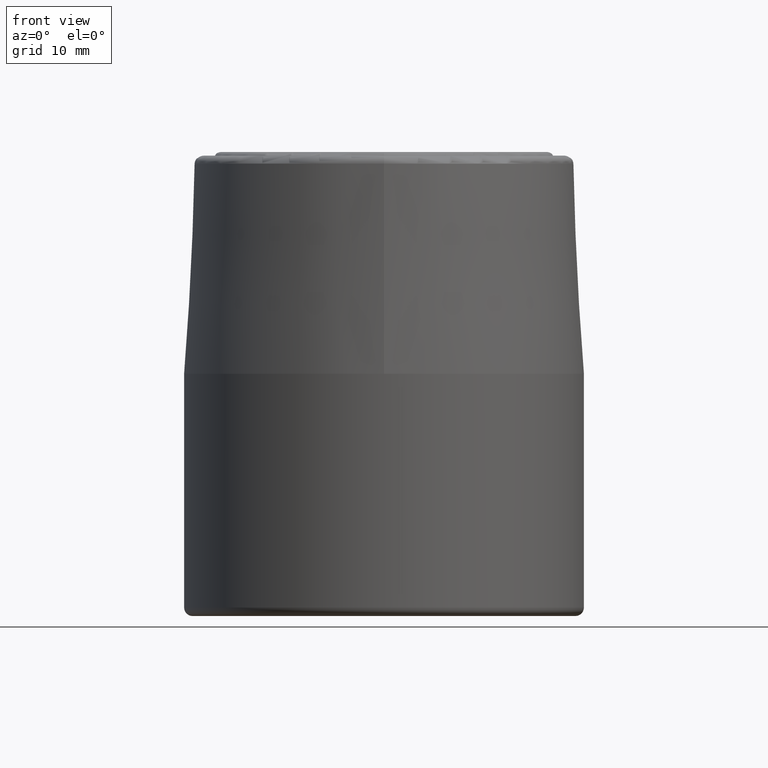
[diagram: clean part render]
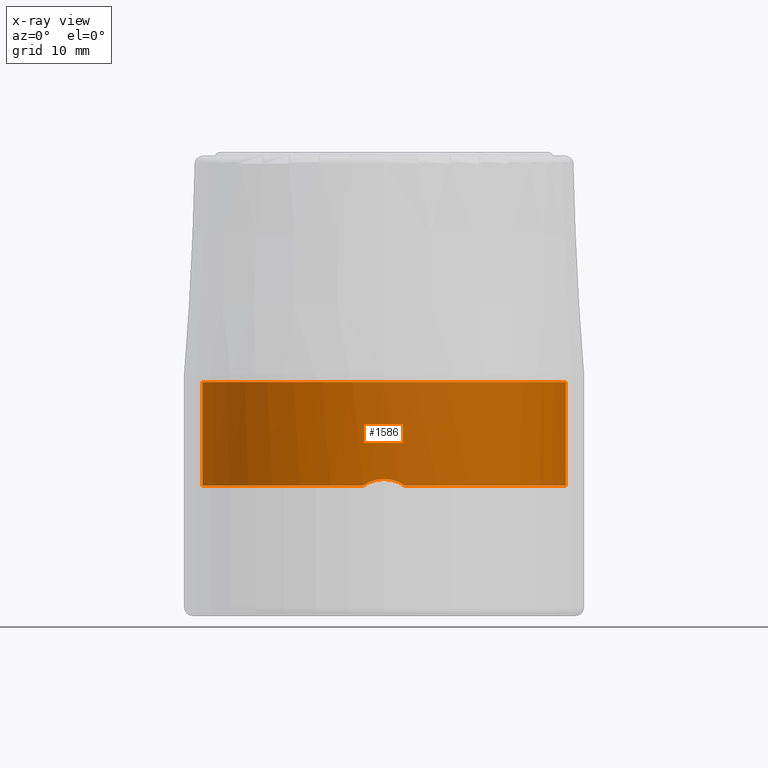
[diagram: x-ray — body ghosted, one internal face saturated and labeled with its STEP entity id]
A machine part, front view, then the same camera in x-ray: the body is ghosted and one INTERNAL B-rep face — a face not visible from any outside direction — is saturated and labeled: STEP entity #1586.
In plain terms, the highlighted cylindrical surface (partial cylindrical patch) has radius 15 mm, axis along (0, 0, 1).
Its self-contained STEP definition (entity closure, byte-faithful):
#352=CARTESIAN_POINT('',(0.E0,0.E0,1.9E1));
#353=DIRECTION('',(0.E0,0.E0,1.E0));
#354=DIRECTION('',(0.E0,-1.E0,0.E0));
#355=AXIS2_PLACEMENT_3D('',#352,#353,#354);
#357=CARTESIAN_POINT('',(0.E0,0.E0,1.044948974278E1));
#358=DIRECTION('',(0.E0,0.E0,1.E0));
#359=DIRECTION('',(1.154700538379E-1,-9.933109617168E-1,0.E0));
#360=AXIS2_PLACEMENT_3D('',#357,#358,#359);
#362=CARTESIAN_POINT('',(0.E0,-1.5E1,1.1E1));
#363=CARTESIAN_POINT('',(1.474734729157E-1,-1.5E1,1.1E1));
#364=CARTESIAN_POINT('',(4.437367453512E-1,-1.499577025289E1,1.097898437295E1));
#365=CARTESIAN_POINT('',(9.077032800050E-1,-1.497483367461E1,1.087262541160E1));
#366=CARTESIAN_POINT('',(1.342774855779E0,-1.494170594969E1,1.069596162603E1));
#367=CARTESIAN_POINT('',(1.606197012465E0,-1.491429463226E1,1.053848181474E1));
#368=CARTESIAN_POINT('',(1.732050807569E0,-1.489966442575E1,1.044948974278E1));
#370=CARTESIAN_POINT('',(-1.732050807569E0,-1.489966442575E1,1.044948974278E1));
#371=CARTESIAN_POINT('',(-1.606229563562E0,-1.491429084827E1,1.053845879764E1));
#372=CARTESIAN_POINT('',(-1.342693953971E0,-1.494169973905E1,1.069592078347E1));
#373=CARTESIAN_POINT('',(-9.089263521619E-1,-1.497477265902E1,
1.087231101679E1));
#374=CARTESIAN_POINT('',(-4.418604788171E-1,-1.499584348464E1,
1.097935621031E1));
#375=CARTESIAN_POINT('',(-1.466635958769E-1,-1.5E1,1.1E1));
#376=CARTESIAN_POINT('',(0.E0,-1.5E1,1.1E1));
#378=CARTESIAN_POINT('',(0.E0,0.E0,1.044948974278E1));
#379=DIRECTION('',(0.E0,0.E0,1.E0));
#380=DIRECTION('',(-1.E0,0.E0,0.E0));
#381=AXIS2_PLACEMENT_3D('',#378,#379,#380);
#383=DIRECTION('',(0.E0,0.E0,1.E0));
#384=VECTOR('',#383,8.550510257217E0);
#385=CARTESIAN_POINT('',(-1.5E1,0.E0,1.044948974278E1));
#386=LINE('',#385,#384);
#387=CARTESIAN_POINT('',(0.E0,0.E0,1.9E1));
#388=DIRECTION('',(0.E0,0.E0,1.E0));
#389=DIRECTION('',(-1.E0,0.E0,0.E0));
#390=AXIS2_PLACEMENT_3D('',#387,#388,#389);
#466=DIRECTION('',(0.E0,-1.461900420291E-10,1.E0));
#467=VECTOR('',#466,8.550510257217E0);
#468=CARTESIAN_POINT('',(1.5E1,0.E0,1.044948974278E1));
#469=LINE('',#468,#467);
#1097=VERTEX_POINT('',#370);
#1098=VERTEX_POINT('',#376);
#1099=VERTEX_POINT('',#368);
#1112=CARTESIAN_POINT('',(-1.5E1,0.E0,1.044948974278E1));
#1113=VERTEX_POINT('',#1112);
#1116=CARTESIAN_POINT('',(1.5E1,0.E0,1.044948974278E1));
#1117=VERTEX_POINT('',#1116);
#1190=CARTESIAN_POINT('',(-1.5E1,0.E0,1.9E1));
#1192=VERTEX_POINT('',#1190);
#1193=CARTESIAN_POINT('',(0.E0,-1.5E1,1.9E1));
#1194=VERTEX_POINT('',#1193);
#1195=CARTESIAN_POINT('',(1.5E1,0.E0,1.9E1));
#1196=VERTEX_POINT('',#1195);
#1565=CARTESIAN_POINT('',(0.E0,0.E0,0.E0));
#1566=DIRECTION('',(0.E0,0.E0,1.E0));
#1567=DIRECTION('',(1.E0,0.E0,0.E0));
#1568=AXIS2_PLACEMENT_3D('',#1565,#1566,#1567);
#1569=CYLINDRICAL_SURFACE('',#1568,1.5E1);
#1570=ORIENTED_EDGE('',*,*,#1521,.T.);
#1572=ORIENTED_EDGE('',*,*,#1571,.F.);
#1574=ORIENTED_EDGE('',*,*,#1573,.F.);
#1576=ORIENTED_EDGE('',*,*,#1575,.F.);
#1578=ORIENTED_EDGE('',*,*,#1577,.F.);
#1580=ORIENTED_EDGE('',*,*,#1579,.F.);
#1582=ORIENTED_EDGE('',*,*,#1581,.T.);
#1583=ORIENTED_EDGE('',*,*,#1535,.T.);
#1584=EDGE_LOOP('',(#1570,#1572,#1574,#1576,#1578,#1580,#1582,#1583));
#1585=FACE_OUTER_BOUND('',#1584,.F.);
#1586=ADVANCED_FACE('',(#1585),#1569,.T.);
#356=CIRCLE('',#355,1.5E1);
#361=CIRCLE('',#360,1.5E1);
#369=B_SPLINE_CURVE_WITH_KNOTS('',3,(#362,#363,#364,#365,#366,#367,#368),
.UNSPECIFIED.,.F.,.F.,(4,1,1,1,4),(0.E0,2.5E-1,5.E-1,7.5E-1,1.E0),
.UNSPECIFIED.);
#377=B_SPLINE_CURVE_WITH_KNOTS('',3,(#370,#371,#372,#373,#374,#375,#376),
.UNSPECIFIED.,.F.,.F.,(4,1,1,1,4),(0.E0,2.5E-1,5.E-1,7.5E-1,1.E0),
.UNSPECIFIED.);
#382=CIRCLE('',#381,1.5E1);
#391=CIRCLE('',#390,1.5E1);
#1521=EDGE_CURVE('',#1194,#1196,#356,.T.);
#1535=EDGE_CURVE('',#1192,#1194,#391,.T.);
#1571=EDGE_CURVE('',#1117,#1196,#469,.T.);
#1573=EDGE_CURVE('',#1099,#1117,#361,.T.);
#1575=EDGE_CURVE('',#1098,#1099,#369,.T.);
#1577=EDGE_CURVE('',#1097,#1098,#377,.T.);
#1579=EDGE_CURVE('',#1113,#1097,#382,.T.);
#1581=EDGE_CURVE('',#1113,#1192,#386,.T.);